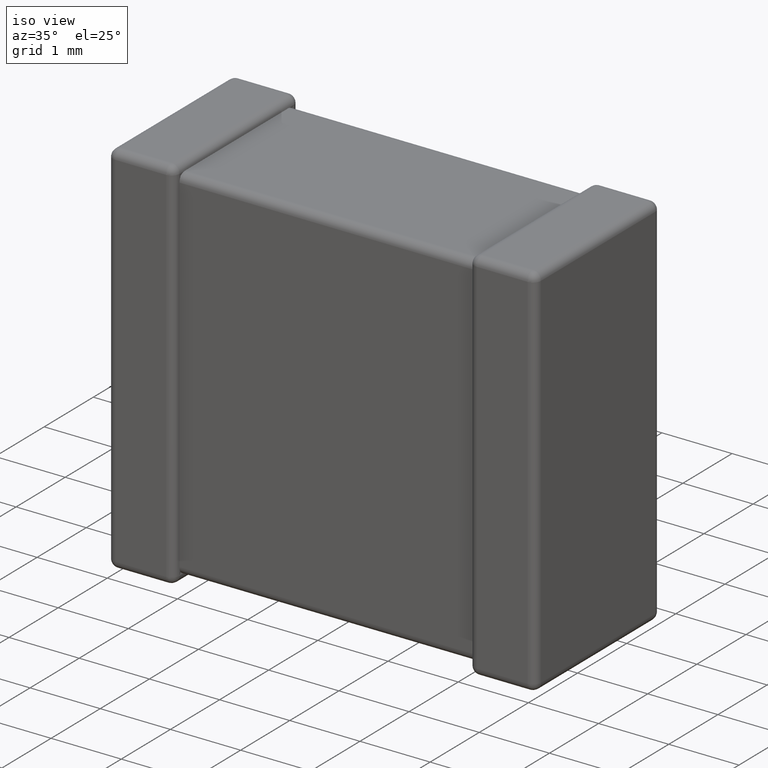
[diagram: clean part render]
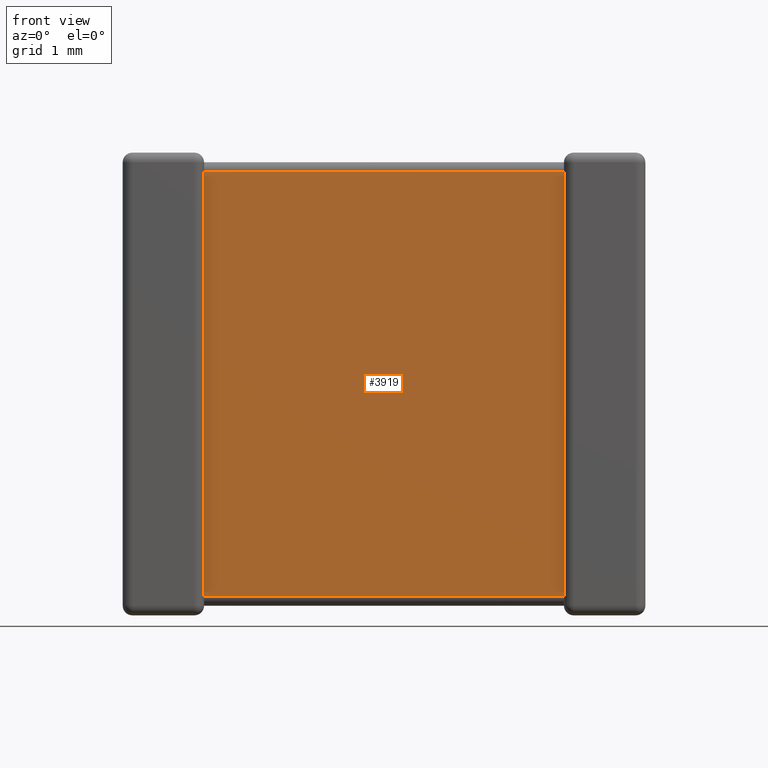
[diagram: tour spotlight — one face highlighted and labeled with its STEP entity id]
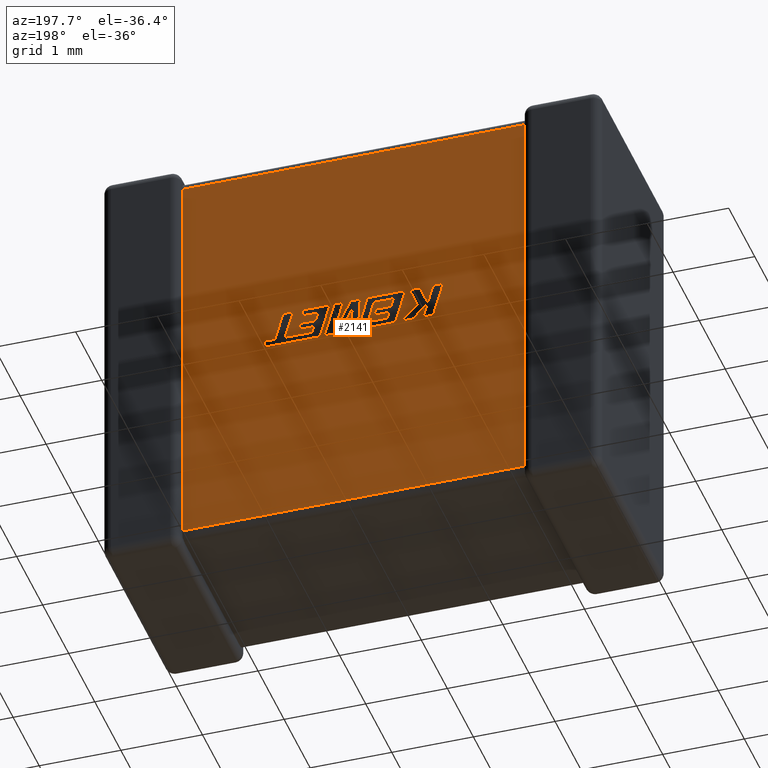
[diagram: tour spotlight — one face highlighted and labeled with its STEP entity id]
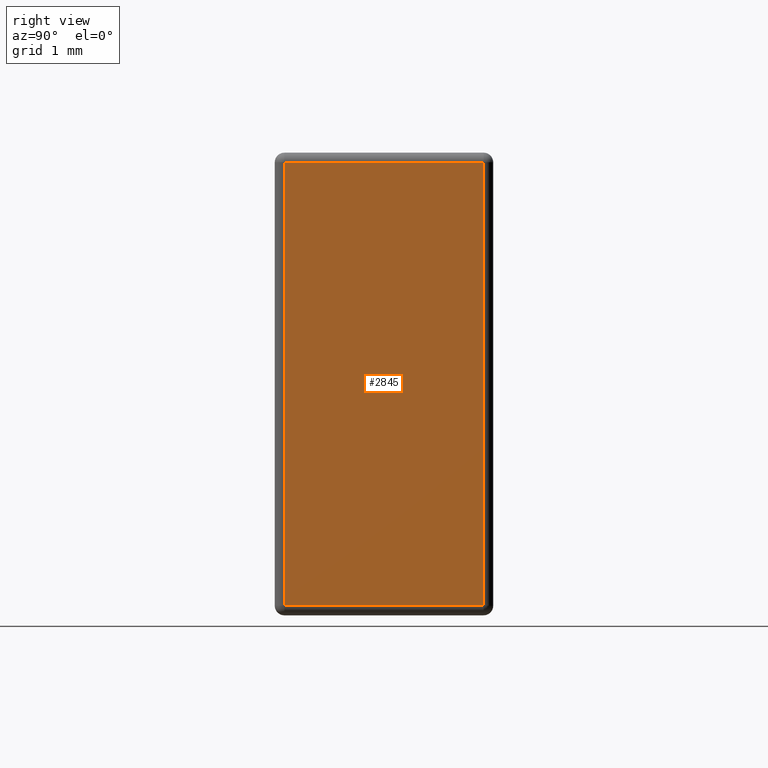
[diagram: tour spotlight — one face highlighted and labeled with its STEP entity id]
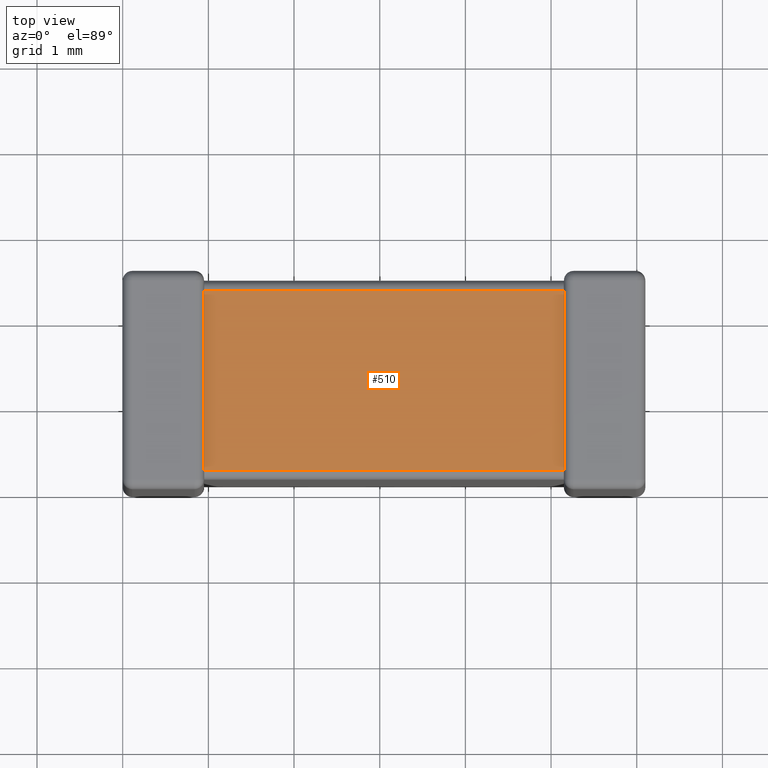
[diagram: tour spotlight — one face highlighted and labeled with its STEP entity id]
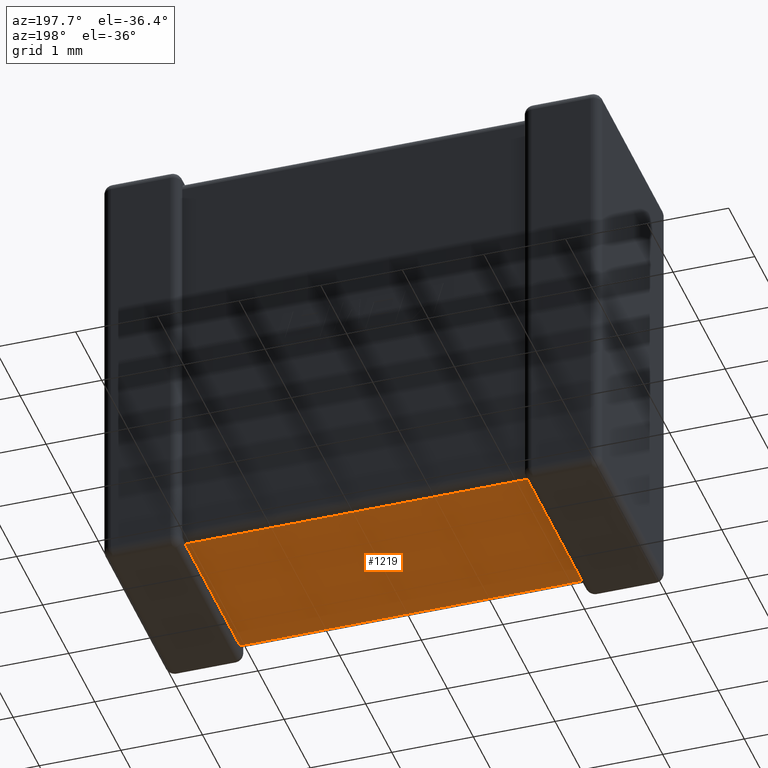
[diagram: tour spotlight — one face highlighted and labeled with its STEP entity id]
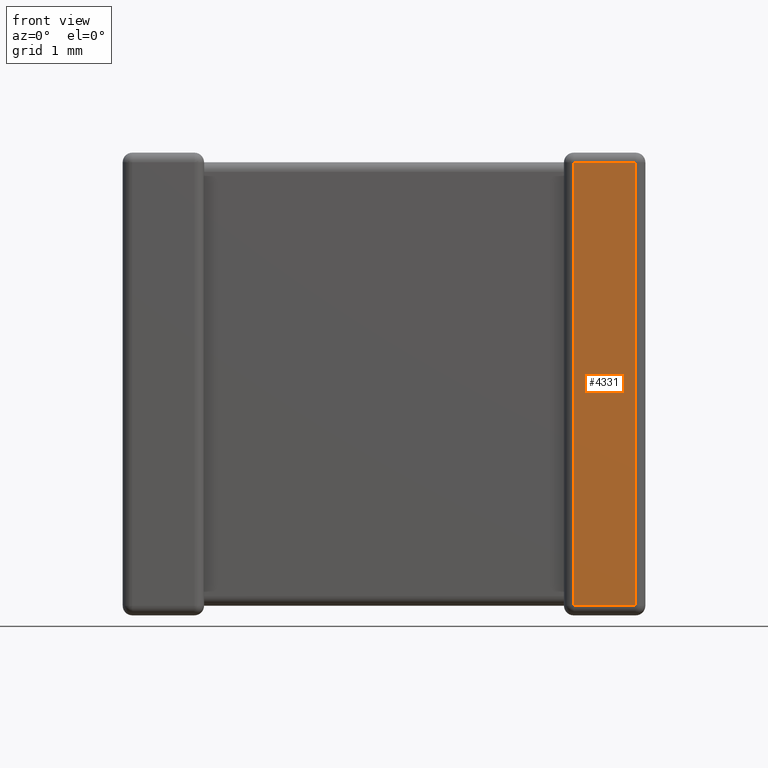
[diagram: tour spotlight — one face highlighted and labeled with its STEP entity id]
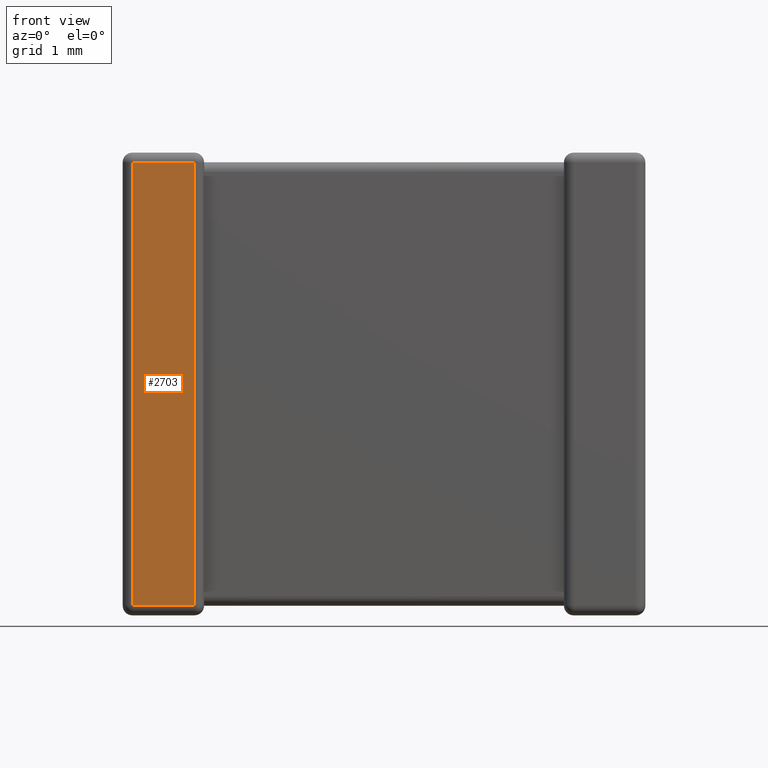
[diagram: tour spotlight — one face highlighted and labeled with its STEP entity id]
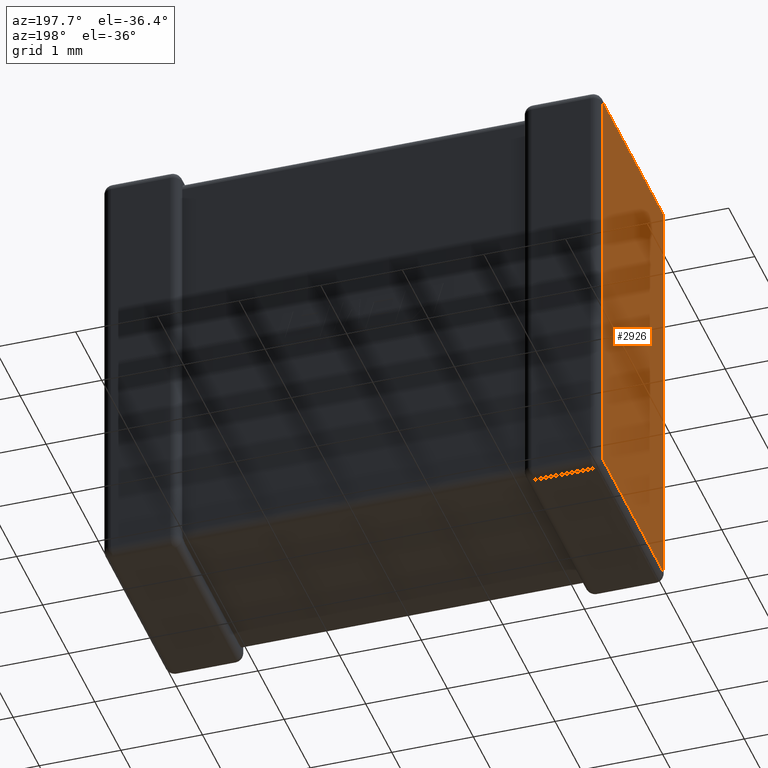
[diagram: tour spotlight — one face highlighted and labeled with its STEP entity id]
A machine part: a face-by-face anatomy tour. The part has 125 B-rep faces; the first image is the clean iso view, then the 8 largest visible faces are spotlighted one at a time (largest first), each with its STEP entity span.

Face 1 — front view, entity #3919. In plain terms, the highlighted planar face has unit normal (0, -1, 0).
Definition (entity closure, byte-faithful):
#844 = VERTEX_POINT ( 'NONE', #2777 ) ;
#897 = DIRECTION ( 'NONE',  ( -0.0000000000000000000, -0.0000000000000000000, 1.000000000000000000 ) ) ;
#978 = ORIENTED_EDGE ( 'NONE', *, *, #1338, .T. ) ;
#983 = LINE ( 'NONE', #4043, #2578 ) ;
#999 = EDGE_LOOP ( 'NONE', ( #2517, #978, #3339, #2614 ) ) ;
#1316 = DIRECTION ( 'NONE',  ( -0.0000000000000000000, -0.0000000000000000000, 1.000000000000000000 ) ) ;
#1338 = EDGE_CURVE ( 'NONE', #3655, #844, #2514, .T. ) ;
#1461 = CARTESIAN_POINT ( 'NONE',  ( 0.9499999999999998400, 0.1123199999999999500, -5.175360000000000400 ) ) ;
#1696 = VERTEX_POINT ( 'NONE', #2305 ) ;
#2060 = DIRECTION ( 'NONE',  ( 1.000000000000000000, 1.032573497605242300E-016, 2.065146995210485200E-016 ) ) ;
#2305 = CARTESIAN_POINT ( 'NONE',  ( 0.9499999999999998400, 0.1123199999999999500, -0.2246399999999999000 ) ) ;
#2309 = PLANE ( 'NONE',  #3164 ) ;
#2310 = EDGE_CURVE ( 'NONE', #844, #3929, #3284, .T. ) ;
#2317 = DIRECTION ( 'NONE',  ( 1.000000000000000000, 1.032573497605242300E-016, 0.0000000000000000000 ) ) ;
#2446 = VECTOR ( 'NONE', #897, 1000.000000000000000 ) ;
#2514 = LINE ( 'NONE', #3140, #4477 ) ;
#2517 = ORIENTED_EDGE ( 'NONE', *, *, #4359, .F. ) ;
#2578 = VECTOR ( 'NONE', #3662, 1000.000000000000000 ) ;
#2614 = ORIENTED_EDGE ( 'NONE', *, *, #3710, .T. ) ;
#2777 = CARTESIAN_POINT ( 'NONE',  ( 5.150000000000000400, 0.1123200000000003900, -5.175359999999999500 ) ) ;
#3033 = CARTESIAN_POINT ( 'NONE',  ( 0.9499999999999998400, 0.1123199999999999500, -5.400000000000000400 ) ) ;
#3140 = CARTESIAN_POINT ( 'NONE',  ( 5.150000000000000400, 0.1123200000000003900, -5.175359999999999500 ) ) ;
#3164 = AXIS2_PLACEMENT_3D ( 'NONE', #3033, #4507, #2317 ) ;
#3284 = LINE ( 'NONE', #3412, #2446 ) ;
#3339 = ORIENTED_EDGE ( 'NONE', *, *, #2310, .T. ) ;
#3412 = CARTESIAN_POINT ( 'NONE',  ( 5.150000000000000400, 0.1123200000000003900, -5.400000000000000400 ) ) ;
#3601 = FACE_OUTER_BOUND ( 'NONE', #999, .T. ) ;
#3655 = VERTEX_POINT ( 'NONE', #1461 ) ;
#3662 = DIRECTION ( 'NONE',  ( -1.000000000000000000, -1.032573497605242300E-016, 2.065146995210485200E-016 ) ) ;
#3710 = EDGE_CURVE ( 'NONE', #3929, #1696, #983, .T. ) ;
#3802 = LINE ( 'NONE', #4618, #4243 ) ;
#3919 = ADVANCED_FACE ( 'NONE', ( #3601 ), #2309, .T. ) ;
#3929 = VERTEX_POINT ( 'NONE', #4127 ) ;
#4043 = CARTESIAN_POINT ( 'NONE',  ( 0.9500000000000009500, 0.1123199999999999500, -0.2246399999999981700 ) ) ;
#4127 = CARTESIAN_POINT ( 'NONE',  ( 5.150000000000000400, 0.1123200000000003900, -0.2246400000000007800 ) ) ;
#4243 = VECTOR ( 'NONE', #1316, 1000.000000000000000 ) ;
#4359 = EDGE_CURVE ( 'NONE', #3655, #1696, #3802, .T. ) ;
#4477 = VECTOR ( 'NONE', #2060, 1000.000000000000000 ) ;
#4507 = DIRECTION ( 'NONE',  ( 1.032573497605242300E-016, -1.000000000000000000, 0.0000000000000000000 ) ) ;
#4618 = CARTESIAN_POINT ( 'NONE',  ( 0.9499999999999998400, 0.1123199999999999500, -5.400000000000000400 ) ) ;

Face 2 — auxiliary view, entity #2141. In plain terms, the highlighted planar face has unit normal (-0, -1, 0).
Definition (entity closure, byte-faithful):
#10 = DIRECTION ( 'NONE',  ( -1.000000000000000000, 1.032573497605242300E-016, -2.065146995210485200E-016 ) ) ;
#383 = EDGE_CURVE ( 'NONE', #431, #1824, #2181, .T. ) ;
#431 = VERTEX_POINT ( 'NONE', #463 ) ;
#463 = CARTESIAN_POINT ( 'NONE',  ( 0.9499999999999998400, 2.437679999999999800, -0.2246399999999999000 ) ) ;
#469 = DIRECTION ( 'NONE',  ( -1.032573497605242300E-016, -1.000000000000000000, 0.0000000000000000000 ) ) ;
#862 = ORIENTED_EDGE ( 'NONE', *, *, #2404, .F. ) ;
#888 = CARTESIAN_POINT ( 'NONE',  ( 5.150000000000000400, 2.437679999999999400, -5.175359999999999500 ) ) ;
#1062 = CARTESIAN_POINT ( 'NONE',  ( 0.9499999999999998400, 2.437679999999999800, -5.175360000000000400 ) ) ;
#1087 = LINE ( 'NONE', #3801, #1478 ) ;
#1170 = VERTEX_POINT ( 'NONE', #888 ) ;
#1262 = EDGE_CURVE ( 'NONE', #2990, #431, #4248, .T. ) ;
#1469 = PLANE ( 'NONE',  #2947 ) ;
#1478 = VECTOR ( 'NONE', #3077, 1000.000000000000000 ) ;
#1632 = CARTESIAN_POINT ( 'NONE',  ( 0.9499999999999998400, 2.437679999999999800, -5.400000000000000400 ) ) ;
#1824 = VERTEX_POINT ( 'NONE', #2414 ) ;
#1952 = ORIENTED_EDGE ( 'NONE', *, *, #2059, .T. ) ;
#2059 = EDGE_CURVE ( 'NONE', #1170, #2990, #2576, .T. ) ;
#2141 = ADVANCED_FACE ( 'NONE', ( #4608 ), #1469, .F. ) ;
#2149 = ORIENTED_EDGE ( 'NONE', *, *, #1262, .T. ) ;
#2181 = LINE ( 'NONE', #4280, #3721 ) ;
#2404 = EDGE_CURVE ( 'NONE', #1170, #1824, #1087, .T. ) ;
#2414 = CARTESIAN_POINT ( 'NONE',  ( 5.150000000000000400, 2.437679999999999400, -0.2246400000000007800 ) ) ;
#2571 = ORIENTED_EDGE ( 'NONE', *, *, #383, .T. ) ;
#2576 = LINE ( 'NONE', #2841, #3761 ) ;
#2706 = DIRECTION ( 'NONE',  ( -0.0000000000000000000, -0.0000000000000000000, 1.000000000000000000 ) ) ;
#2825 = DIRECTION ( 'NONE',  ( 1.000000000000000000, -1.032573497605242300E-016, -2.065146995210485200E-016 ) ) ;
#2841 = CARTESIAN_POINT ( 'NONE',  ( 0.9499999999999998400, 2.437679999999999800, -5.175360000000000400 ) ) ;
#2947 = AXIS2_PLACEMENT_3D ( 'NONE', #4049, #469, #3693 ) ;
#2990 = VERTEX_POINT ( 'NONE', #1062 ) ;
#3077 = DIRECTION ( 'NONE',  ( -0.0000000000000000000, -0.0000000000000000000, 1.000000000000000000 ) ) ;
#3298 = EDGE_LOOP ( 'NONE', ( #862, #1952, #2149, #2571 ) ) ;
#3693 = DIRECTION ( 'NONE',  ( 1.000000000000000000, -1.032573497605242300E-016, 0.0000000000000000000 ) ) ;
#3721 = VECTOR ( 'NONE', #2825, 1000.000000000000000 ) ;
#3761 = VECTOR ( 'NONE', #10, 1000.000000000000000 ) ;
#3801 = CARTESIAN_POINT ( 'NONE',  ( 5.150000000000000400, 2.437679999999999400, -5.400000000000000400 ) ) ;
#4049 = CARTESIAN_POINT ( 'NONE',  ( 0.9499999999999998400, 2.437679999999999800, -5.400000000000000400 ) ) ;
#4248 = LINE ( 'NONE', #1632, #4424 ) ;
#4280 = CARTESIAN_POINT ( 'NONE',  ( 5.150000000000000400, 2.437679999999999400, -0.2246399999999990300 ) ) ;
#4424 = VECTOR ( 'NONE', #2706, 1000.000000000000000 ) ;
#4608 = FACE_OUTER_BOUND ( 'NONE', #3298, .T. ) ;

Face 3 — right view, entity #2845. In plain terms, the highlighted planar face has unit normal (-1, 0, 0).
Definition (entity closure, byte-faithful):
#29 = VERTEX_POINT ( 'NONE', #1593 ) ;
#389 = DIRECTION ( 'NONE',  ( 0.0000000000000000000, 0.0000000000000000000, 1.000000000000000000 ) ) ;
#390 = ORIENTED_EDGE ( 'NONE', *, *, #1085, .T. ) ;
#609 = LINE ( 'NONE', #2932, #2351 ) ;
#643 = PLANE ( 'NONE',  #1896 ) ;
#689 = CARTESIAN_POINT ( 'NONE',  ( 6.100000000000000500, 0.0000000000000000000, 0.0000000000000000000 ) ) ;
#787 = EDGE_CURVE ( 'NONE', #2909, #1259, #3597, .T. ) ;
#989 = EDGE_LOOP ( 'NONE', ( #4306, #1004, #390, #2347 ) ) ;
#1004 = ORIENTED_EDGE ( 'NONE', *, *, #3036, .T. ) ;
#1085 = EDGE_CURVE ( 'NONE', #29, #3742, #2342, .T. ) ;
#1259 = VERTEX_POINT ( 'NONE', #3441 ) ;
#1593 = CARTESIAN_POINT ( 'NONE',  ( 6.100000000000000500, 2.437679999999999800, -0.1123199999999999900 ) ) ;
#1657 = VECTOR ( 'NONE', #2083, 1000.000000000000000 ) ;
#1664 = VECTOR ( 'NONE', #1927, 1000.000000000000000 ) ;
#1724 = EDGE_CURVE ( 'NONE', #3742, #2909, #1782, .T. ) ;
#1782 = LINE ( 'NONE', #3381, #1664 ) ;
#1787 = CARTESIAN_POINT ( 'NONE',  ( 6.100000000000000500, 0.1123200000000000000, -5.287679999999999900 ) ) ;
#1830 = DIRECTION ( 'NONE',  ( 0.0000000000000000000, 0.0000000000000000000, 1.000000000000000000 ) ) ;
#1844 = DIRECTION ( 'NONE',  ( 0.0000000000000000000, -1.000000000000000000, 0.0000000000000000000 ) ) ;
#1896 = AXIS2_PLACEMENT_3D ( 'NONE', #689, #4272, #389 ) ;
#1927 = DIRECTION ( 'NONE',  ( 0.0000000000000000000, 0.0000000000000000000, -1.000000000000000000 ) ) ;
#2083 = DIRECTION ( 'NONE',  ( 0.0000000000000000000, 1.000000000000000000, -0.0000000000000000000 ) ) ;
#2342 = LINE ( 'NONE', #2934, #2399 ) ;
#2347 = ORIENTED_EDGE ( 'NONE', *, *, #1724, .T. ) ;
#2351 = VECTOR ( 'NONE', #1830, 1000.000000000000000 ) ;
#2399 = VECTOR ( 'NONE', #1844, 1000.000000000000000 ) ;
#2845 = ADVANCED_FACE ( 'NONE', ( #3279 ), #643, .F. ) ;
#2909 = VERTEX_POINT ( 'NONE', #1787 ) ;
#2932 = CARTESIAN_POINT ( 'NONE',  ( 6.100000000000000500, 2.437679999999999800, 0.0000000000000000000 ) ) ;
#2934 = CARTESIAN_POINT ( 'NONE',  ( 6.100000000000000500, 0.0000000000000000000, -0.1123199999999999900 ) ) ;
#3036 = EDGE_CURVE ( 'NONE', #1259, #29, #609, .T. ) ;
#3279 = FACE_OUTER_BOUND ( 'NONE', #989, .T. ) ;
#3381 = CARTESIAN_POINT ( 'NONE',  ( 6.100000000000000500, 0.1123200000000000000, 0.0000000000000000000 ) ) ;
#3441 = CARTESIAN_POINT ( 'NONE',  ( 6.100000000000000500, 2.437679999999999800, -5.287679999999999900 ) ) ;
#3597 = LINE ( 'NONE', #4640, #1657 ) ;
#3726 = CARTESIAN_POINT ( 'NONE',  ( 6.100000000000000500, 0.1123200000000000000, -0.1123199999999999900 ) ) ;
#3742 = VERTEX_POINT ( 'NONE', #3726 ) ;
#4272 = DIRECTION ( 'NONE',  ( -1.000000000000000000, 0.0000000000000000000, 0.0000000000000000000 ) ) ;
#4306 = ORIENTED_EDGE ( 'NONE', *, *, #787, .T. ) ;
#4640 = CARTESIAN_POINT ( 'NONE',  ( 6.100000000000000500, 0.0000000000000000000, -5.287679999999999900 ) ) ;

Face 4 — top view, entity #510. In plain terms, the highlighted planar face has unit normal (0, 0, 1).
Definition (entity closure, byte-faithful):
#47 = CARTESIAN_POINT ( 'NONE',  ( 0.9500000000000002900, 0.0000000000000000000, -0.1123199999999982300 ) ) ;
#127 = DIRECTION ( 'NONE',  ( 1.000000000000000000, 1.032573497605242300E-016, -2.065146995210484400E-016 ) ) ;
#202 = EDGE_LOOP ( 'NONE', ( #2787, #3607, #3967, #611 ) ) ;
#510 = ADVANCED_FACE ( 'NONE', ( #3072 ), #3683, .T. ) ;
#611 = ORIENTED_EDGE ( 'NONE', *, *, #1576, .T. ) ;
#839 = CARTESIAN_POINT ( 'NONE',  ( 0.9500000000000002900, 0.2246399999999999500, -0.1123199999999982300 ) ) ;
#1359 = CARTESIAN_POINT ( 'NONE',  ( 5.150000000000000400, 0.0000000000000000000, -0.1123199999999990900 ) ) ;
#1554 = VECTOR ( 'NONE', #1971, 1000.000000000000000 ) ;
#1576 = EDGE_CURVE ( 'NONE', #2944, #3642, #2530, .T. ) ;
#1614 = LINE ( 'NONE', #839, #2010 ) ;
#1658 = EDGE_CURVE ( 'NONE', #1700, #4429, #1614, .T. ) ;
#1700 = VERTEX_POINT ( 'NONE', #2350 ) ;
#1728 = VECTOR ( 'NONE', #3661, 1000.000000000000000 ) ;
#1767 = CARTESIAN_POINT ( 'NONE',  ( 0.9500000000000002900, 2.325359999999999900, -0.1123199999999982300 ) ) ;
#1945 = DIRECTION ( 'NONE',  ( 2.065146995210484400E-016, 0.0000000000000000000, 1.000000000000000000 ) ) ;
#1964 = EDGE_CURVE ( 'NONE', #4429, #2944, #2226, .T. ) ;
#1971 = DIRECTION ( 'NONE',  ( -1.000000000000000000, 1.032573497605242300E-016, 2.065146995210484400E-016 ) ) ;
#2010 = VECTOR ( 'NONE', #127, 1000.000000000000000 ) ;
#2226 = LINE ( 'NONE', #1359, #4658 ) ;
#2350 = CARTESIAN_POINT ( 'NONE',  ( 0.9500000000000002900, 0.2246399999999999500, -0.1123199999999982300 ) ) ;
#2530 = LINE ( 'NONE', #3791, #1554 ) ;
#2787 = ORIENTED_EDGE ( 'NONE', *, *, #3044, .F. ) ;
#2827 = CARTESIAN_POINT ( 'NONE',  ( 5.150000000000000400, 2.325359999999999400, -0.1123199999999990900 ) ) ;
#2944 = VERTEX_POINT ( 'NONE', #2827 ) ;
#2993 = CARTESIAN_POINT ( 'NONE',  ( 0.9500000000000002900, 0.0000000000000000000, -0.1123199999999982300 ) ) ;
#3044 = EDGE_CURVE ( 'NONE', #1700, #3642, #3135, .T. ) ;
#3072 = FACE_OUTER_BOUND ( 'NONE', #202, .T. ) ;
#3135 = LINE ( 'NONE', #47, #1728 ) ;
#3173 = CARTESIAN_POINT ( 'NONE',  ( 5.150000000000000400, 0.2246400000000003900, -0.1123199999999990900 ) ) ;
#3607 = ORIENTED_EDGE ( 'NONE', *, *, #1658, .T. ) ;
#3642 = VERTEX_POINT ( 'NONE', #1767 ) ;
#3661 = DIRECTION ( 'NONE',  ( -0.0000000000000000000, 1.000000000000000000, -0.0000000000000000000 ) ) ;
#3683 = PLANE ( 'NONE',  #4115 ) ;
#3791 = CARTESIAN_POINT ( 'NONE',  ( 0.9500000000000002900, 2.325359999999999900, -0.1123199999999982300 ) ) ;
#3924 = DIRECTION ( 'NONE',  ( -0.0000000000000000000, 1.000000000000000000, -0.0000000000000000000 ) ) ;
#3967 = ORIENTED_EDGE ( 'NONE', *, *, #1964, .T. ) ;
#4081 = DIRECTION ( 'NONE',  ( 1.000000000000000000, 0.0000000000000000000, -2.065146995210484400E-016 ) ) ;
#4115 = AXIS2_PLACEMENT_3D ( 'NONE', #2993, #1945, #4081 ) ;
#4429 = VERTEX_POINT ( 'NONE', #3173 ) ;
#4658 = VECTOR ( 'NONE', #3924, 1000.000000000000000 ) ;

Face 5 — auxiliary view, entity #1219. In plain terms, the highlighted planar face has unit normal (-0, 0, 1).
Definition (entity closure, byte-faithful):
#72 = CARTESIAN_POINT ( 'NONE',  ( 0.9500000000000002900, 0.0000000000000000000, -5.287679999999999900 ) ) ;
#91 = VECTOR ( 'NONE', #1681, 1000.000000000000000 ) ;
#208 = CARTESIAN_POINT ( 'NONE',  ( 0.9500000000000002900, 0.0000000000000000000, -5.287679999999999900 ) ) ;
#225 = PLANE ( 'NONE',  #2972 ) ;
#305 = CARTESIAN_POINT ( 'NONE',  ( 0.9499999999999998400, 0.2246399999999999500, -5.287679999999999900 ) ) ;
#599 = ORIENTED_EDGE ( 'NONE', *, *, #3733, .T. ) ;
#711 = VERTEX_POINT ( 'NONE', #4120 ) ;
#760 = CARTESIAN_POINT ( 'NONE',  ( 0.9500000000000002900, 0.2246399999999999500, -5.287679999999999900 ) ) ;
#761 = VECTOR ( 'NONE', #2610, 1000.000000000000000 ) ;
#768 = EDGE_CURVE ( 'NONE', #1762, #3719, #925, .T. ) ;
#925 = LINE ( 'NONE', #305, #91 ) ;
#949 = DIRECTION ( 'NONE',  ( -0.0000000000000000000, 1.000000000000000000, -0.0000000000000000000 ) ) ;
#965 = EDGE_CURVE ( 'NONE', #711, #3962, #4136, .T. ) ;
#1219 = ADVANCED_FACE ( 'NONE', ( #1362 ), #225, .F. ) ;
#1293 = EDGE_CURVE ( 'NONE', #1762, #3962, #4080, .T. ) ;
#1308 = ORIENTED_EDGE ( 'NONE', *, *, #965, .T. ) ;
#1362 = FACE_OUTER_BOUND ( 'NONE', #2595, .T. ) ;
#1681 = DIRECTION ( 'NONE',  ( -1.000000000000000000, -1.032573497605242300E-016, -2.065146995210484400E-016 ) ) ;
#1762 = VERTEX_POINT ( 'NONE', #4590 ) ;
#2493 = DIRECTION ( 'NONE',  ( 1.000000000000000000, -1.032573497605242300E-016, 2.065146995210484400E-016 ) ) ;
#2595 = EDGE_LOOP ( 'NONE', ( #4503, #4126, #599, #1308 ) ) ;
#2610 = DIRECTION ( 'NONE',  ( -0.0000000000000000000, 1.000000000000000000, -0.0000000000000000000 ) ) ;
#2672 = LINE ( 'NONE', #72, #761 ) ;
#2723 = DIRECTION ( 'NONE',  ( 1.000000000000000000, 0.0000000000000000000, 2.065146995210484400E-016 ) ) ;
#2972 = AXIS2_PLACEMENT_3D ( 'NONE', #208, #4538, #2723 ) ;
#3406 = CARTESIAN_POINT ( 'NONE',  ( 5.150000000000000400, 2.325359999999999400, -5.287679999999999000 ) ) ;
#3461 = CARTESIAN_POINT ( 'NONE',  ( 5.150000000000000400, 0.0000000000000000000, -5.287679999999999000 ) ) ;
#3719 = VERTEX_POINT ( 'NONE', #760 ) ;
#3733 = EDGE_CURVE ( 'NONE', #3719, #711, #2672, .T. ) ;
#3868 = VECTOR ( 'NONE', #2493, 1000.000000000000000 ) ;
#3962 = VERTEX_POINT ( 'NONE', #3406 ) ;
#4080 = LINE ( 'NONE', #3461, #4368 ) ;
#4120 = CARTESIAN_POINT ( 'NONE',  ( 0.9500000000000002900, 2.325359999999999900, -5.287679999999999900 ) ) ;
#4126 = ORIENTED_EDGE ( 'NONE', *, *, #768, .T. ) ;
#4136 = LINE ( 'NONE', #4287, #3868 ) ;
#4287 = CARTESIAN_POINT ( 'NONE',  ( 0.9500000000000005100, 2.325359999999999900, -5.287679999999999900 ) ) ;
#4368 = VECTOR ( 'NONE', #949, 1000.000000000000000 ) ;
#4503 = ORIENTED_EDGE ( 'NONE', *, *, #1293, .F. ) ;
#4538 = DIRECTION ( 'NONE',  ( -2.065146995210484400E-016, 0.0000000000000000000, 1.000000000000000000 ) ) ;
#4590 = CARTESIAN_POINT ( 'NONE',  ( 5.150000000000000400, 0.2246400000000003900, -5.287679999999999000 ) ) ;

Face 6 — front view, entity #4331. In plain terms, the highlighted planar face has unit normal (-0, 1, 0).
Definition (entity closure, byte-faithful):
#140 = EDGE_CURVE ( 'NONE', #1140, #1223, #3549, .T. ) ;
#206 = VERTEX_POINT ( 'NONE', #3528 ) ;
#292 = EDGE_CURVE ( 'NONE', #206, #1140, #3076, .T. ) ;
#404 = EDGE_LOOP ( 'NONE', ( #1667, #3015, #4300, #4650 ) ) ;
#539 = VECTOR ( 'NONE', #3448, 1000.000000000000000 ) ;
#934 = VECTOR ( 'NONE', #4297, 1000.000000000000000 ) ;
#1083 = CARTESIAN_POINT ( 'NONE',  ( 5.262319999999999900, 0.0000000000000000000, 0.0000000000000000000 ) ) ;
#1140 = VERTEX_POINT ( 'NONE', #3411 ) ;
#1223 = VERTEX_POINT ( 'NONE', #2751 ) ;
#1297 = LINE ( 'NONE', #4183, #539 ) ;
#1500 = VECTOR ( 'NONE', #4308, 1000.000000000000000 ) ;
#1545 = AXIS2_PLACEMENT_3D ( 'NONE', #3840, #2737, #1612 ) ;
#1612 = DIRECTION ( 'NONE',  ( 0.0000000000000000000, -0.0000000000000000000, 1.000000000000000000 ) ) ;
#1667 = ORIENTED_EDGE ( 'NONE', *, *, #140, .T. ) ;
#1727 = CARTESIAN_POINT ( 'NONE',  ( 5.987680000000000100, 0.0000000000000000000, -0.1123199999999999900 ) ) ;
#1773 = CARTESIAN_POINT ( 'NONE',  ( 5.987680000000000100, 0.0000000000000000000, 0.0000000000000000000 ) ) ;
#1894 = LINE ( 'NONE', #1773, #934 ) ;
#2088 = CARTESIAN_POINT ( 'NONE',  ( 6.100000000000000500, 0.0000000000000000000, -5.287679999999999900 ) ) ;
#2569 = VERTEX_POINT ( 'NONE', #1727 ) ;
#2594 = VECTOR ( 'NONE', #3843, 1000.000000000000000 ) ;
#2737 = DIRECTION ( 'NONE',  ( -0.0000000000000000000, 1.000000000000000000, 0.0000000000000000000 ) ) ;
#2751 = CARTESIAN_POINT ( 'NONE',  ( 5.987680000000000100, 0.0000000000000000000, -5.287679999999999900 ) ) ;
#2766 = EDGE_CURVE ( 'NONE', #2569, #206, #1297, .T. ) ;
#3015 = ORIENTED_EDGE ( 'NONE', *, *, #3517, .T. ) ;
#3076 = LINE ( 'NONE', #1083, #1500 ) ;
#3411 = CARTESIAN_POINT ( 'NONE',  ( 5.262319999999999900, 0.0000000000000000000, -5.287679999999999900 ) ) ;
#3448 = DIRECTION ( 'NONE',  ( -1.000000000000000000, 0.0000000000000000000, 0.0000000000000000000 ) ) ;
#3452 = PLANE ( 'NONE',  #1545 ) ;
#3517 = EDGE_CURVE ( 'NONE', #1223, #2569, #1894, .T. ) ;
#3528 = CARTESIAN_POINT ( 'NONE',  ( 5.262319999999999900, 0.0000000000000000000, -0.1123199999999999900 ) ) ;
#3549 = LINE ( 'NONE', #2088, #2594 ) ;
#3840 = CARTESIAN_POINT ( 'NONE',  ( 6.100000000000000500, 0.0000000000000000000, 0.0000000000000000000 ) ) ;
#3843 = DIRECTION ( 'NONE',  ( 1.000000000000000000, 0.0000000000000000000, -0.0000000000000000000 ) ) ;
#4021 = FACE_OUTER_BOUND ( 'NONE', #404, .T. ) ;
#4183 = CARTESIAN_POINT ( 'NONE',  ( 6.100000000000000500, 0.0000000000000000000, -0.1123199999999999900 ) ) ;
#4297 = DIRECTION ( 'NONE',  ( -0.0000000000000000000, -0.0000000000000000000, 1.000000000000000000 ) ) ;
#4300 = ORIENTED_EDGE ( 'NONE', *, *, #2766, .T. ) ;
#4308 = DIRECTION ( 'NONE',  ( 0.0000000000000000000, 0.0000000000000000000, -1.000000000000000000 ) ) ;
#4331 = ADVANCED_FACE ( 'NONE', ( #4021 ), #3452, .F. ) ;
#4650 = ORIENTED_EDGE ( 'NONE', *, *, #292, .T. ) ;

Face 7 — front view, entity #2703. In plain terms, the highlighted planar face has unit normal (-0, 1, 0).
Definition (entity closure, byte-faithful):
#37 = DIRECTION ( 'NONE',  ( 0.0000000000000000000, 0.0000000000000000000, -1.000000000000000000 ) ) ;
#38 = AXIS2_PLACEMENT_3D ( 'NONE', #2306, #1226, #525 ) ;
#69 = CARTESIAN_POINT ( 'NONE',  ( 0.8376799999999908800, 0.0000000000000000000, -5.287679999999999900 ) ) ;
#284 = EDGE_LOOP ( 'NONE', ( #3769, #1621, #4412, #2186 ) ) ;
#323 = EDGE_CURVE ( 'NONE', #4549, #519, #771, .T. ) ;
#519 = VERTEX_POINT ( 'NONE', #69 ) ;
#525 = DIRECTION ( 'NONE',  ( 0.0000000000000000000, -0.0000000000000000000, 1.000000000000000000 ) ) ;
#636 = LINE ( 'NONE', #3554, #4014 ) ;
#748 = CARTESIAN_POINT ( 'NONE',  ( 0.1123199999999999500, 0.0000000000000000000, -5.400000000000000400 ) ) ;
#750 = CARTESIAN_POINT ( 'NONE',  ( 0.1123199999999999500, 0.0000000000000000000, -5.287679999999999900 ) ) ;
#771 = LINE ( 'NONE', #2140, #1323 ) ;
#907 = VERTEX_POINT ( 'NONE', #4324 ) ;
#946 = EDGE_CURVE ( 'NONE', #2279, #4549, #1257, .T. ) ;
#1203 = VECTOR ( 'NONE', #37, 1000.000000000000000 ) ;
#1226 = DIRECTION ( 'NONE',  ( -0.0000000000000000000, 1.000000000000000000, 0.0000000000000000000 ) ) ;
#1257 = LINE ( 'NONE', #748, #1203 ) ;
#1307 = DIRECTION ( 'NONE',  ( 0.0000000000000000000, 0.0000000000000000000, 1.000000000000000000 ) ) ;
#1323 = VECTOR ( 'NONE', #1450, 1000.000000000000000 ) ;
#1450 = DIRECTION ( 'NONE',  ( 1.000000000000000000, 0.0000000000000000000, -0.0000000000000000000 ) ) ;
#1621 = ORIENTED_EDGE ( 'NONE', *, *, #2802, .T. ) ;
#2140 = CARTESIAN_POINT ( 'NONE',  ( 6.100000000000000500, 0.0000000000000000000, -5.287679999999999900 ) ) ;
#2186 = ORIENTED_EDGE ( 'NONE', *, *, #946, .T. ) ;
#2207 = VECTOR ( 'NONE', #4207, 1000.000000000000000 ) ;
#2279 = VERTEX_POINT ( 'NONE', #4117 ) ;
#2306 = CARTESIAN_POINT ( 'NONE',  ( 6.100000000000000500, 0.0000000000000000000, 0.0000000000000000000 ) ) ;
#2612 = FACE_OUTER_BOUND ( 'NONE', #284, .T. ) ;
#2703 = ADVANCED_FACE ( 'NONE', ( #2612 ), #4159, .F. ) ;
#2750 = EDGE_CURVE ( 'NONE', #907, #2279, #4469, .T. ) ;
#2802 = EDGE_CURVE ( 'NONE', #519, #907, #636, .T. ) ;
#3554 = CARTESIAN_POINT ( 'NONE',  ( 0.8376799999999908800, 0.0000000000000000000, 0.0000000000000000000 ) ) ;
#3769 = ORIENTED_EDGE ( 'NONE', *, *, #323, .T. ) ;
#4014 = VECTOR ( 'NONE', #1307, 1000.000000000000000 ) ;
#4117 = CARTESIAN_POINT ( 'NONE',  ( 0.1123199999999999500, 0.0000000000000000000, -0.1123199999999999900 ) ) ;
#4159 = PLANE ( 'NONE',  #38 ) ;
#4207 = DIRECTION ( 'NONE',  ( -1.000000000000000000, 0.0000000000000000000, 0.0000000000000000000 ) ) ;
#4324 = CARTESIAN_POINT ( 'NONE',  ( 0.8376799999999908800, 0.0000000000000000000, -0.1123199999999999900 ) ) ;
#4412 = ORIENTED_EDGE ( 'NONE', *, *, #2750, .T. ) ;
#4469 = LINE ( 'NONE', #4514, #2207 ) ;
#4514 = CARTESIAN_POINT ( 'NONE',  ( 6.100000000000000500, 0.0000000000000000000, -0.1123199999999999900 ) ) ;
#4549 = VERTEX_POINT ( 'NONE', #750 ) ;

Face 8 — auxiliary view, entity #2926. In plain terms, the highlighted planar face has unit normal (-1, 0, 0).
Definition (entity closure, byte-faithful):
#169 = EDGE_CURVE ( 'NONE', #4560, #2101, #3312, .T. ) ;
#296 = FACE_OUTER_BOUND ( 'NONE', #1449, .T. ) ;
#359 = PLANE ( 'NONE',  #2023 ) ;
#582 = EDGE_CURVE ( 'NONE', #2101, #4050, #1209, .T. ) ;
#705 = ORIENTED_EDGE ( 'NONE', *, *, #1334, .T. ) ;
#736 = CARTESIAN_POINT ( 'NONE',  ( 0.0000000000000000000, 0.1123200000000000000, -0.1123199999999999900 ) ) ;
#832 = DIRECTION ( 'NONE',  ( -0.0000000000000000000, 1.000000000000000000, -0.0000000000000000000 ) ) ;
#1209 = LINE ( 'NONE', #1912, #3242 ) ;
#1310 = ORIENTED_EDGE ( 'NONE', *, *, #169, .T. ) ;
#1334 = EDGE_CURVE ( 'NONE', #3211, #4560, #2164, .T. ) ;
#1449 = EDGE_LOOP ( 'NONE', ( #705, #1310, #3425, #2115 ) ) ;
#1899 = CARTESIAN_POINT ( 'NONE',  ( 0.0000000000000000000, 0.1123200000000000000, -5.287679999999999900 ) ) ;
#1912 = CARTESIAN_POINT ( 'NONE',  ( 0.0000000000000000000, 2.549999999999999800, -0.1123199999999999900 ) ) ;
#1948 = VECTOR ( 'NONE', #3158, 1000.000000000000000 ) ;
#1985 = DIRECTION ( 'NONE',  ( -0.0000000000000000000, -1.000000000000000000, -0.0000000000000000000 ) ) ;
#2023 = AXIS2_PLACEMENT_3D ( 'NONE', #3209, #4333, #3943 ) ;
#2101 = VERTEX_POINT ( 'NONE', #736 ) ;
#2115 = ORIENTED_EDGE ( 'NONE', *, *, #4544, .T. ) ;
#2164 = LINE ( 'NONE', #3123, #2772 ) ;
#2271 = LINE ( 'NONE', #2887, #2762 ) ;
#2432 = CARTESIAN_POINT ( 'NONE',  ( 0.0000000000000000000, 0.1123200000000000000, 0.0000000000000000000 ) ) ;
#2762 = VECTOR ( 'NONE', #3261, 1000.000000000000000 ) ;
#2772 = VECTOR ( 'NONE', #1985, 1000.000000000000000 ) ;
#2887 = CARTESIAN_POINT ( 'NONE',  ( 0.0000000000000000000, 2.437679999999999800, -5.400000000000000400 ) ) ;
#2926 = ADVANCED_FACE ( 'NONE', ( #296 ), #359, .T. ) ;
#3123 = CARTESIAN_POINT ( 'NONE',  ( 0.0000000000000000000, 0.0000000000000000000, -5.287679999999999900 ) ) ;
#3158 = DIRECTION ( 'NONE',  ( -0.0000000000000000000, -0.0000000000000000000, 1.000000000000000000 ) ) ;
#3209 = CARTESIAN_POINT ( 'NONE',  ( 0.0000000000000000000, 0.0000000000000000000, 0.0000000000000000000 ) ) ;
#3211 = VERTEX_POINT ( 'NONE', #3783 ) ;
#3242 = VECTOR ( 'NONE', #832, 1000.000000000000000 ) ;
#3261 = DIRECTION ( 'NONE',  ( -0.0000000000000000000, 0.0000000000000000000, -1.000000000000000000 ) ) ;
#3312 = LINE ( 'NONE', #2432, #1948 ) ;
#3425 = ORIENTED_EDGE ( 'NONE', *, *, #582, .T. ) ;
#3783 = CARTESIAN_POINT ( 'NONE',  ( 0.0000000000000000000, 2.437679999999999800, -5.287679999999999900 ) ) ;
#3853 = CARTESIAN_POINT ( 'NONE',  ( 0.0000000000000000000, 2.437679999999999800, -0.1123199999999999900 ) ) ;
#3943 = DIRECTION ( 'NONE',  ( 0.0000000000000000000, 0.0000000000000000000, 1.000000000000000000 ) ) ;
#4050 = VERTEX_POINT ( 'NONE', #3853 ) ;
#4333 = DIRECTION ( 'NONE',  ( -1.000000000000000000, 0.0000000000000000000, 0.0000000000000000000 ) ) ;
#4544 = EDGE_CURVE ( 'NONE', #4050, #3211, #2271, .T. ) ;
#4560 = VERTEX_POINT ( 'NONE', #1899 ) ;